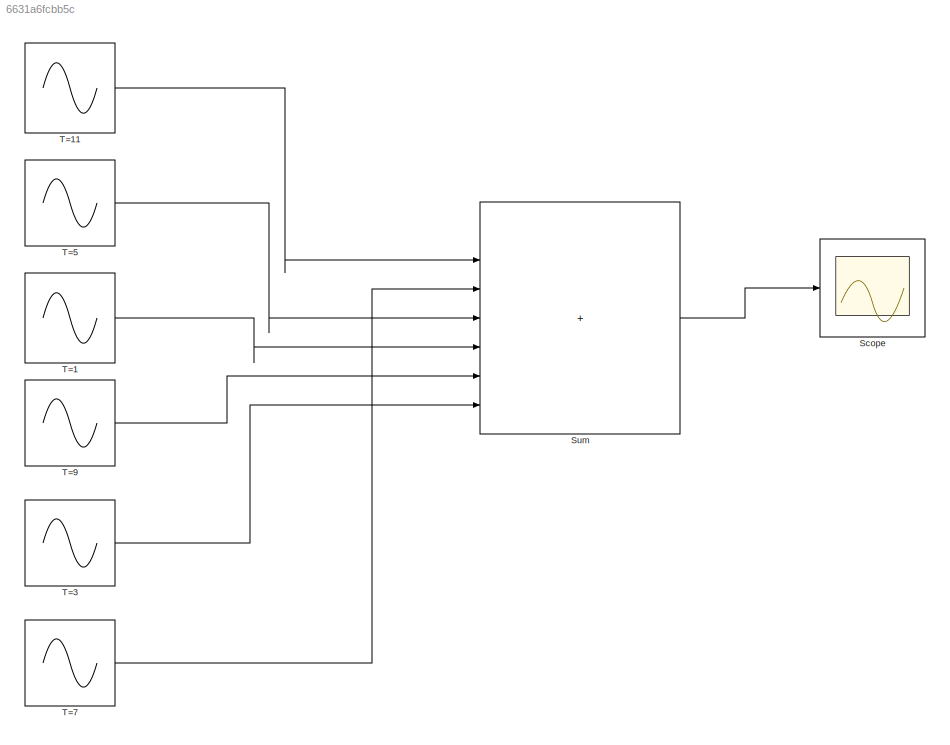
MODEL slx_6631a6fcbb5c
KIND model
CONFIG AbsTol = auto
CONFIG EnableMultiTasking = off
CONFIG FixedStep = auto
CONFIG MaxStep = auto
CONFIG MinStep = auto
CONFIG RelTol = 1e-3
CONFIG SampleTimeConstraint = Unconstrained
CONFIG SolverName = VariableStepAuto
CONFIG StartTime = 0.0
CONFIG StopTime = 0.1
BLOCK [Sin]  T=11
  Amplitude = 1/11
  Frequency = 50 * pi * 2 * 11
  SampleTime = 0.0001
BLOCK [Scope] Scope
  Floating = off
  NumInputPorts = 1
  ScopeSpecificationString = Simulink.scopes.TimeScopeBlockCfg('CurrentConfiguration', extmgr.ConfigurationSet(extmgr.Configuration('Core','General UI',true),extmgr.Configuration('Core','Source UI',true),extmgr.Configuration('Sources','WiredSimulink',true),extmgr.Configuration('Visuals','Time Domain',true,'SerializedDisplays',{struct('MinYLimReal','-1.15811','MaxYLimReal','1.15811','YLabelReal','','MinYLimMag','0.00000','MaxY...<+1375ch>
BLOCK [Sum] Sum
  IconShape = rectangular
  Inputs = |+++++++
BLOCK [Sin] T=1
  Frequency = 50 * pi * 2
  SampleTime = 0.0001
BLOCK [Sin] T=3
  Amplitude = 1/3
  Frequency = 50*pi*2*3
  SampleTime = 0.0001
BLOCK [Sin] T=5
  Amplitude = 1/5
  Frequency = 50*pi*2*5
  SampleTime = 0.0001
BLOCK [Sin] T=7
  Amplitude = 1/7
  Frequency = 50*pi*2*7
  SampleTime = 0.0001
BLOCK [Sin] T=9
  Amplitude = 1/9
  Frequency = 50*pi*2*9
  SampleTime = 0.0001
LINE  T=11:1 -> Sum:2
LINE Sum:1 -> Scope:1
LINE T=1:1 -> Sum:5
LINE T=3:1 -> Sum:7
LINE T=5:1 -> Sum:4
LINE T=7:1 -> Sum:3
LINE T=9:1 -> Sum:6
